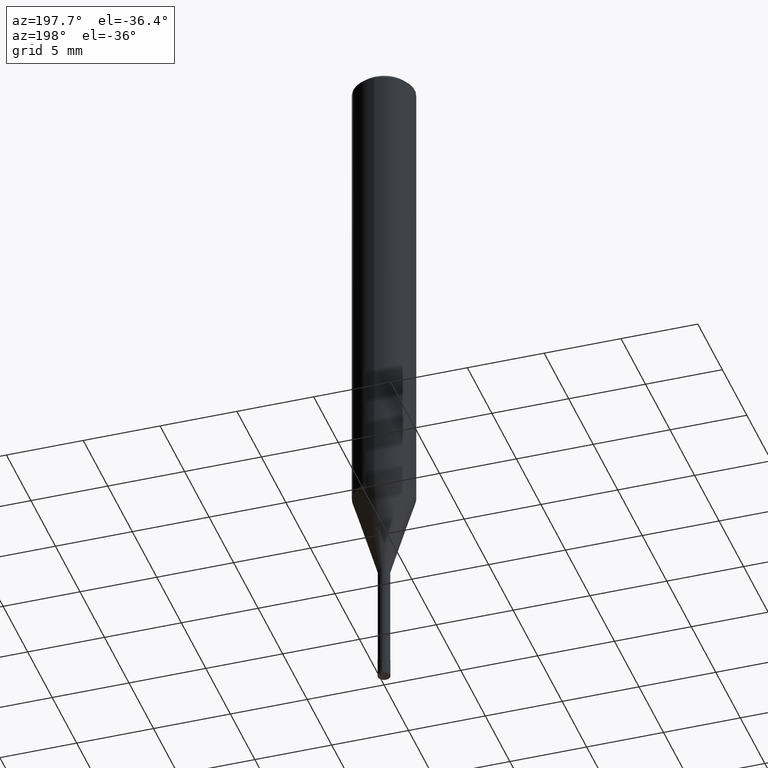
[diagram: clean part render]
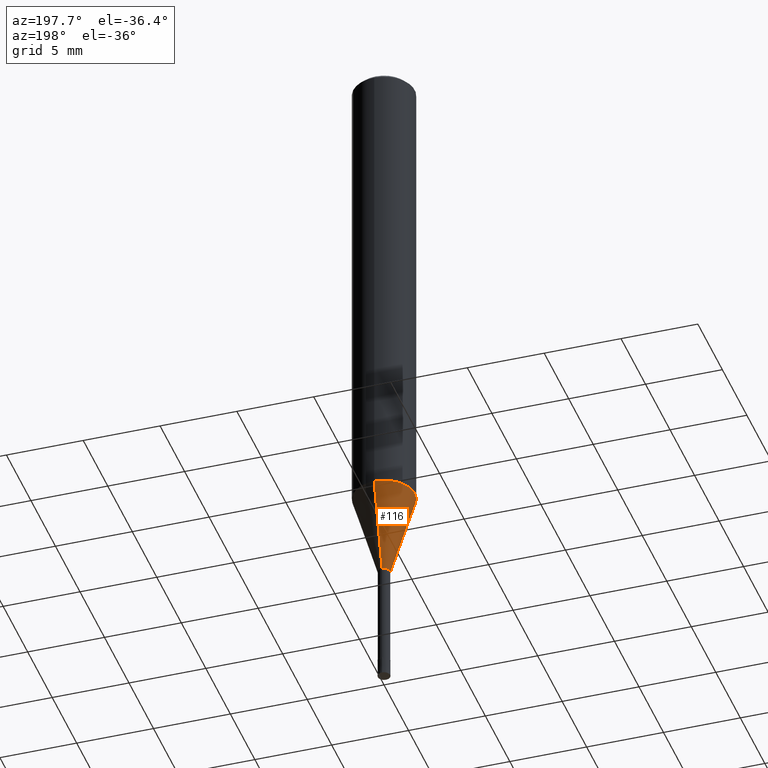
[diagram: same view with one face highlighted and labeled with its STEP entity id]
A machine part, auxiliary view. The second image highlights one B-rep face of the part: STEP entity #116.
In plain terms, the highlighted conical surface has half-angle 15.999 deg.
Its self-contained STEP definition (entity closure, byte-faithful):
#98=VERTEX_POINT('',#236);
#104=VERTEX_POINT('',#242);
#116=ADVANCED_FACE('',(#256),#257,.T.);
#120=EDGE_CURVE('',#148,#104,#261,.T.);
#134=EDGE_CURVE('',#140,#148,#276,.T.);
#140=VERTEX_POINT('',#282);
#148=VERTEX_POINT('',#292);
#160=EDGE_CURVE('',#104,#98,#306,.T.);
#208=EDGE_CURVE('',#140,#98,#361,.T.);
#236=CARTESIAN_POINT('',(0.0,0.38995,-37.0));
#242=CARTESIAN_POINT('',(0.0,1.99995,-31.385));
#256=FACE_OUTER_BOUND('',#404,.T.);
#257=CONICAL_SURFACE('',#405,1.19495,0.279240281890545);
#261=CIRCLE('',#412,1.99995);
#276=LINE('',#431,#432);
#282=CARTESIAN_POINT('',(4.77535247673036E-017,-0.38995,-37.0));
#292=CARTESIAN_POINT('',(2.44915147732706E-016,-1.99995,-31.385));
#306=LINE('',#470,#471);
#361=CIRCLE('',#540,0.38995);
#404=EDGE_LOOP('',(#573,#574,#575,#576));
#405=AXIS2_PLACEMENT_3D('',#577,#578,#579);
#412=AXIS2_PLACEMENT_3D('',#581,#582,#583);
#431=CARTESIAN_POINT('',(1.46334336250005E-016,-1.19495,-34.1925));
#432=VECTOR('',#601,1.0);
#470=CARTESIAN_POINT('',(-1.46334336250005E-016,1.19495,-34.1925));
#471=VECTOR('',#645,1.0);
#540=AXIS2_PLACEMENT_3D('',#711,#712,#713);
#573=ORIENTED_EDGE('',*,*,#160,.T.);
#574=ORIENTED_EDGE('',*,*,#208,.F.);
#575=ORIENTED_EDGE('',*,*,#134,.T.);
#576=ORIENTED_EDGE('',*,*,#120,.T.);
#577=CARTESIAN_POINT('',(0.0,0.0,-34.1925));
#578=DIRECTION('',(-0.0,-0.0,1.0));
#579=DIRECTION('',(0.0,1.0,0.0));
#581=CARTESIAN_POINT('',(0.0,0.0,-31.385));
#582=DIRECTION('',(0.0,0.0,-1.0));
#583=DIRECTION('',(0.0,1.0,0.0));
#601=DIRECTION('',(3.37532662235176E-017,-0.275625437661361,0.961265113334497));
#645=DIRECTION('',(3.37532662235176E-017,-0.275625437661361,-0.961265113334497));
#711=CARTESIAN_POINT('',(0.0,0.0,-37.0));
#712=DIRECTION('',(0.0,0.0,-1.0));
#713=DIRECTION('',(0.0,1.0,0.0));